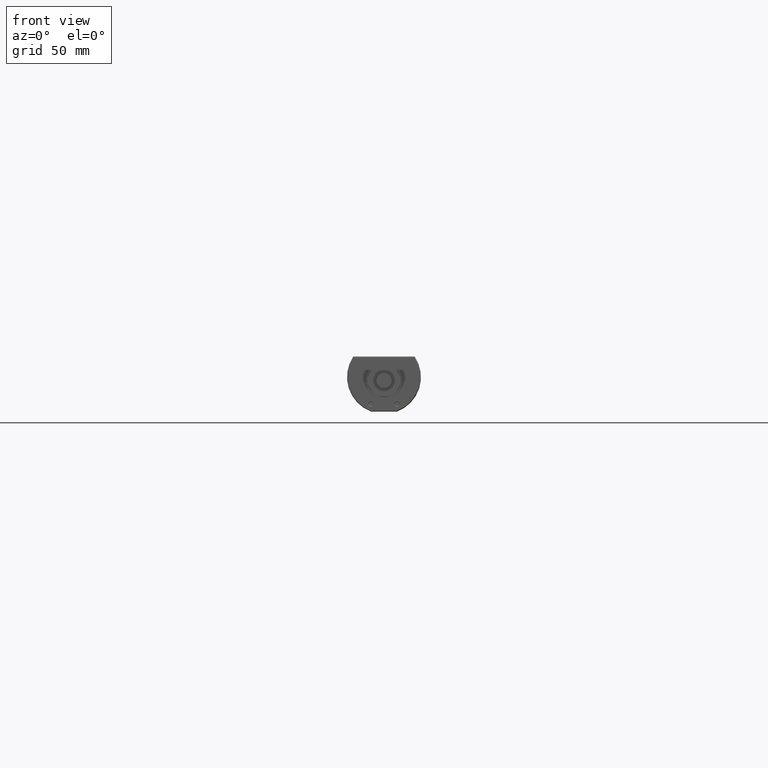
[diagram: clean part render]
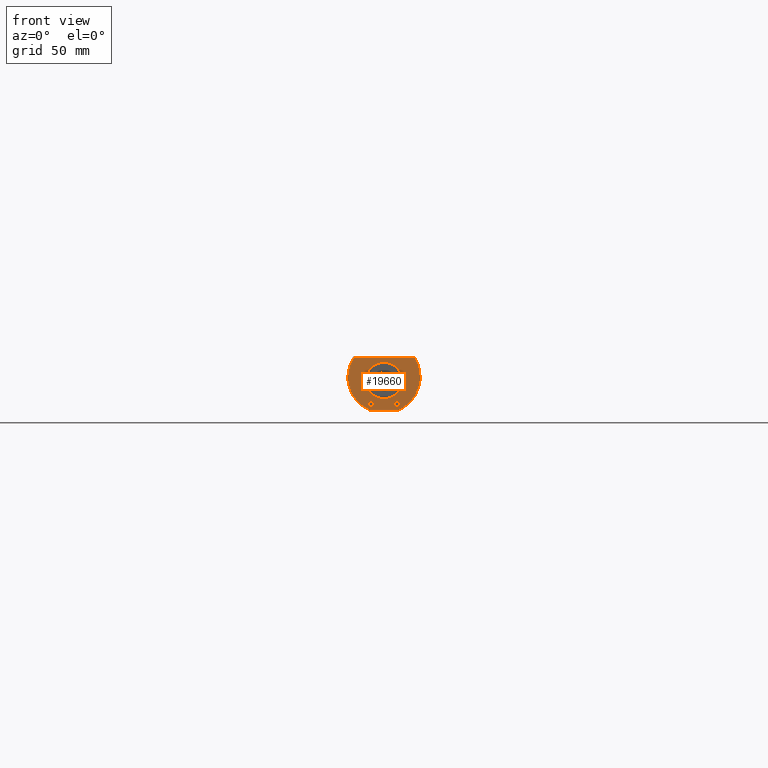
[diagram: same view with one face highlighted and labeled with its STEP entity id]
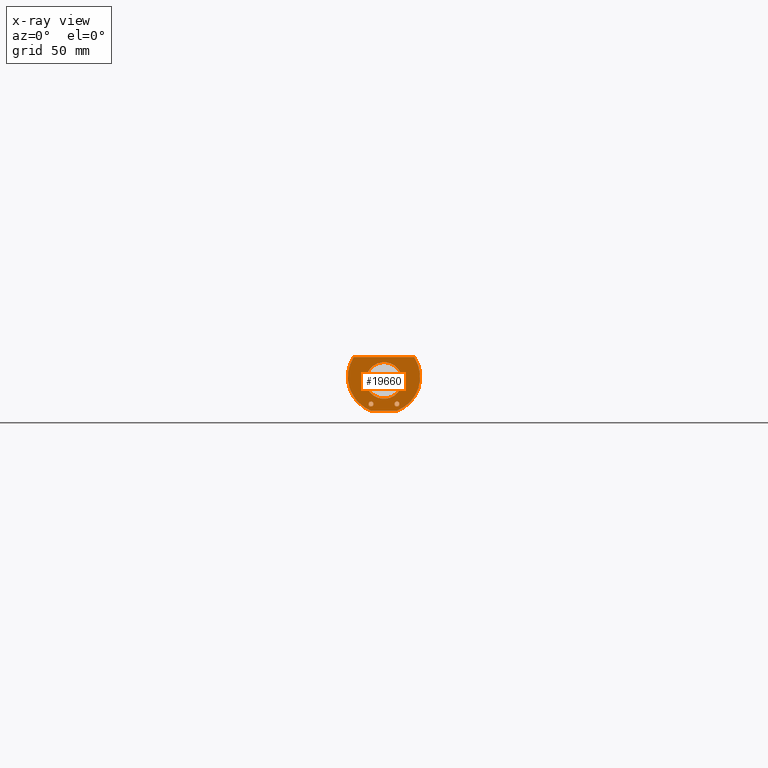
[diagram: x-ray of the same camera — body ghosted, the highlighted face saturated]
A machine part, front view. The second image highlights one B-rep face of the part: STEP entity #19660.
The next image is the same camera in x-ray: the body ghosted, the highlighted face saturated — about 0% of this face is hidden behind the body in this view.
In plain terms, the highlighted planar face has unit normal (0, -1, 0).
Its self-contained STEP definition (entity closure, byte-faithful):
#17650=CARTESIAN_POINT('',(-16.3345515631189,10.7600894754653,268.));
#17660=VERTEX_POINT('',#17650);
#17690=CARTESIAN_POINT('',(2.05311837807138E-13,-2.22369216630175E-15,
268.));
#17700=DIRECTION('',(-1.37384890593759E-14,2.33252530908452E-15,1.));
#17710=DIRECTION('',(-1.,0.,-1.37384890593759E-14));
#17720=AXIS2_PLACEMENT_3D('',#17690,#17700,#17710);
#17730=CIRCLE('',#17720,19.5600894754654);
#17740=CARTESIAN_POINT('',(-6.88024154290119,-18.3100894754654,268.));
#17750=VERTEX_POINT('',#17740);
#17760=EDGE_CURVE('',#17660,#17750,#17730,.T.);
#18310=CARTESIAN_POINT('',(16.3345515631189,10.7600894754653,268.));
#18320=VERTEX_POINT('',#18310);
#18350=CARTESIAN_POINT('',(1.77635683940025E-14,10.7600894754653,268.));
#18360=DIRECTION('',(1.,0.,0.));
#18370=VECTOR('',#18360,1.);
#18380=LINE('',#18350,#18370);
#18390=EDGE_CURVE('',#17660,#18320,#18380,.T.);
#18680=CARTESIAN_POINT('',(6.88024154290122,-18.3100894754654,268.));
#18690=VERTEX_POINT('',#18680);
#18720=CARTESIAN_POINT('',(-1.36381672867095E-15,-8.39879687330563E-14,
268.));
#18730=DIRECTION('',(2.46993356956785E-15,7.63005727629543E-15,1.));
#18740=DIRECTION('',(0.,-1.,7.63005727629543E-15));
#18750=AXIS2_PLACEMENT_3D('',#18720,#18730,#18740);
#18760=CIRCLE('',#18750,19.5600894754653);
#18770=EDGE_CURVE('',#18690,#18320,#18760,.T.);
#18920=CARTESIAN_POINT('',(1.77635683940025E-14,-18.3100894754653,268.))
;
#18930=DIRECTION('',(-1.,0.,0.));
#18940=VECTOR('',#18930,1.);
#18950=LINE('',#18920,#18940);
#18960=EDGE_CURVE('',#18690,#17750,#18950,.T.);
#19100=CARTESIAN_POINT('',(-35.7703448023115,-21.2171073705584,268.));
#19110=DIRECTION('',(0.,0.,1.));
#19120=DIRECTION('',(1.,0.,0.));
#19130=AXIS2_PLACEMENT_3D('',#19100,#19110,#19120);
#19140=PLANE('',#19130);
#19150=CARTESIAN_POINT('',(6.99999999999981,-14.6000894754653,268.));
#19160=DIRECTION('',(-1.18947984209006E-14,6.17911606280552E-16,1.));
#19170=DIRECTION('',(1.,0.,1.18947984209006E-14));
#19180=AXIS2_PLACEMENT_3D('',#19150,#19160,#19170);
#19190=CIRCLE('',#19180,1.40000000000003);
#19200=CARTESIAN_POINT('',(5.59999999999977,-14.6000894754653,268.));
#19210=VERTEX_POINT('',#19200);
#19220=CARTESIAN_POINT('',(8.39999999999984,-14.6000894754653,268.));
#19230=VERTEX_POINT('',#19220);
#19240=EDGE_CURVE('',#19210,#19230,#19190,.T.);
#19250=ORIENTED_EDGE('',*,*,#19240,.F.);
#19260=EDGE_CURVE('',#19230,#19210,#19190,.T.);
#19270=ORIENTED_EDGE('',*,*,#19260,.F.);
#19280=EDGE_LOOP('',(#19270,#19250));
#19290=FACE_BOUND('',#19280,.T.);
#19300=CARTESIAN_POINT('',(-7.00000000000002,-14.6000894754647,268.));
#19310=DIRECTION('',(-1.85373481884225E-15,3.57064635343662E-14,1.));
#19320=DIRECTION('',(0.,1.,-3.57064635343662E-14));
#19330=AXIS2_PLACEMENT_3D('',#19300,#19310,#19320);
#19340=CIRCLE('',#19330,1.40000000000014);
#19350=CARTESIAN_POINT('',(-7.00000000000002,-13.2000894754645,268.));
#19360=VERTEX_POINT('',#19350);
#19370=CARTESIAN_POINT('',(-7.00000000000002,-16.0000894754648,268.));
#19380=VERTEX_POINT('',#19370);
#19390=EDGE_CURVE('',#19360,#19380,#19340,.T.);
#19400=ORIENTED_EDGE('',*,*,#19390,.F.);
#19410=EDGE_CURVE('',#19380,#19360,#19340,.T.);
#19420=ORIENTED_EDGE('',*,*,#19410,.F.);
#19430=EDGE_LOOP('',(#19420,#19400));
#19440=FACE_BOUND('',#19430,.T.);
#19450=CARTESIAN_POINT('',(2.07125983031631E-14,-1.9,268.));
#19460=DIRECTION('',(0.,0.,-1.));
#19470=DIRECTION('',(1.,0.,0.));
#19480=AXIS2_PLACEMENT_3D('',#19450,#19460,#19470);
#19490=CIRCLE('',#19480,9.875);
#19500=CARTESIAN_POINT('',(-9.87499999999998,-1.9,268.));
#19510=VERTEX_POINT('',#19500);
#19520=CARTESIAN_POINT('',(9.87500000000002,-1.9,268.));
#19530=VERTEX_POINT('',#19520);
#19540=EDGE_CURVE('',#19510,#19530,#19490,.T.);
#19550=ORIENTED_EDGE('',*,*,#19540,.T.);
#19560=EDGE_CURVE('',#19530,#19510,#19490,.T.);
#19570=ORIENTED_EDGE('',*,*,#19560,.T.);
#19580=EDGE_LOOP('',(#19570,#19550));
#19590=FACE_BOUND('',#19580,.T.);
#19600=ORIENTED_EDGE('',*,*,#18390,.F.);
#19610=ORIENTED_EDGE('',*,*,#18770,.T.);
#19620=ORIENTED_EDGE('',*,*,#18960,.F.);
#19630=ORIENTED_EDGE('',*,*,#17760,.T.);
#19640=EDGE_LOOP('',(#19630,#19620,#19610,#19600));
#19650=FACE_OUTER_BOUND('',#19640,.T.);
#19660=ADVANCED_FACE('',(#19290,#19440,#19590,#19650),#19140,.T.);